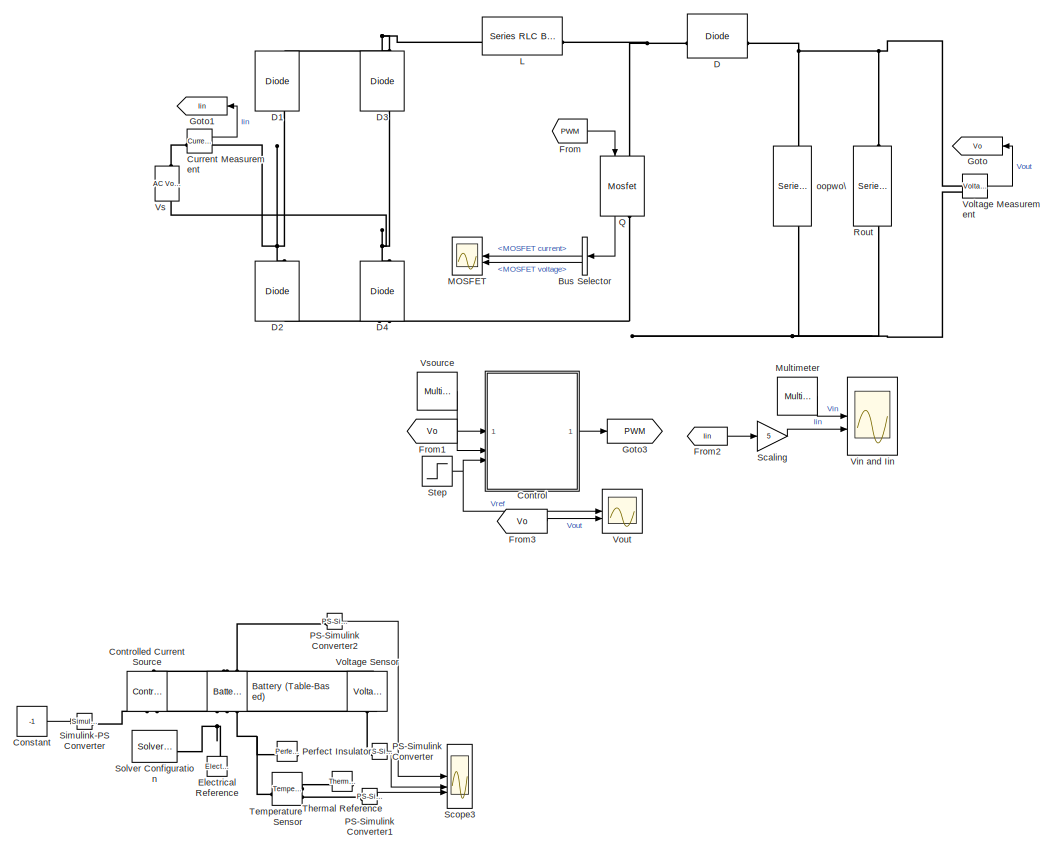
[diagram: root canvas - part 1/3, right side, full height]
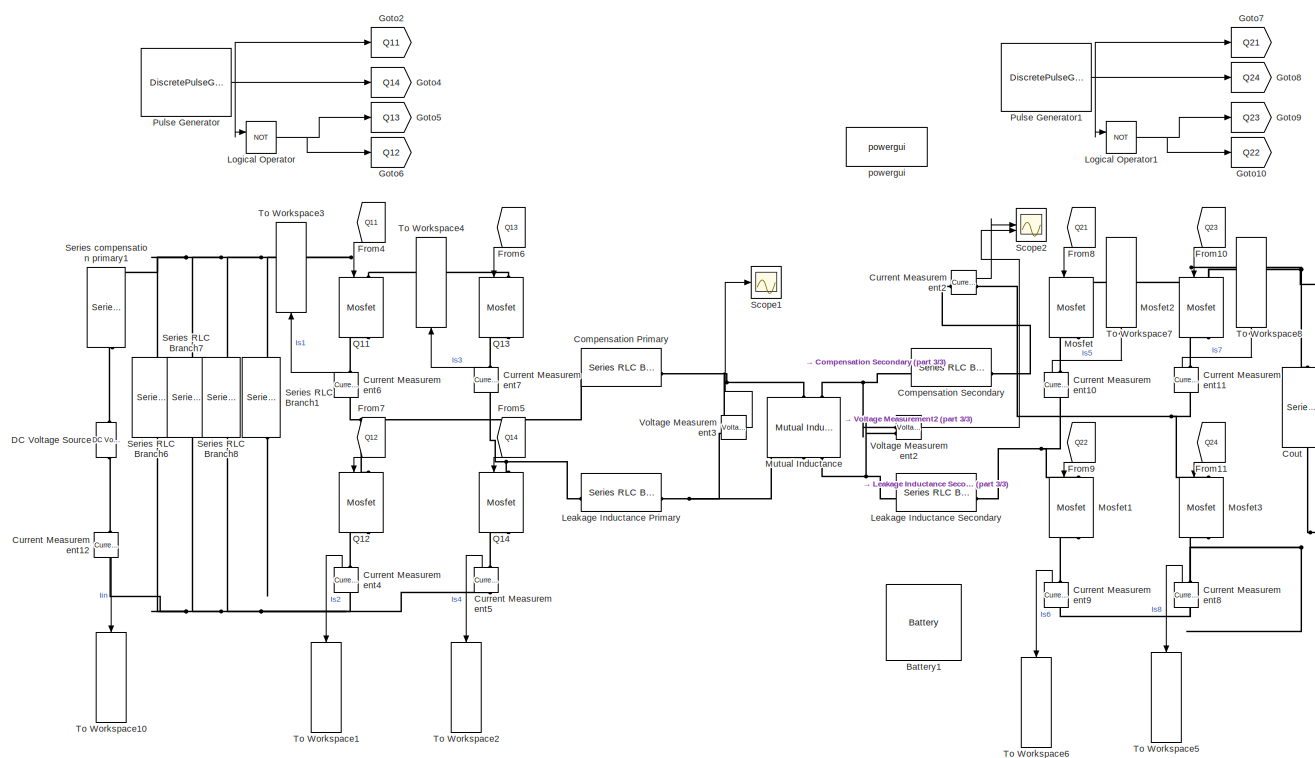
[diagram: root canvas - part 2/3, middle left region]
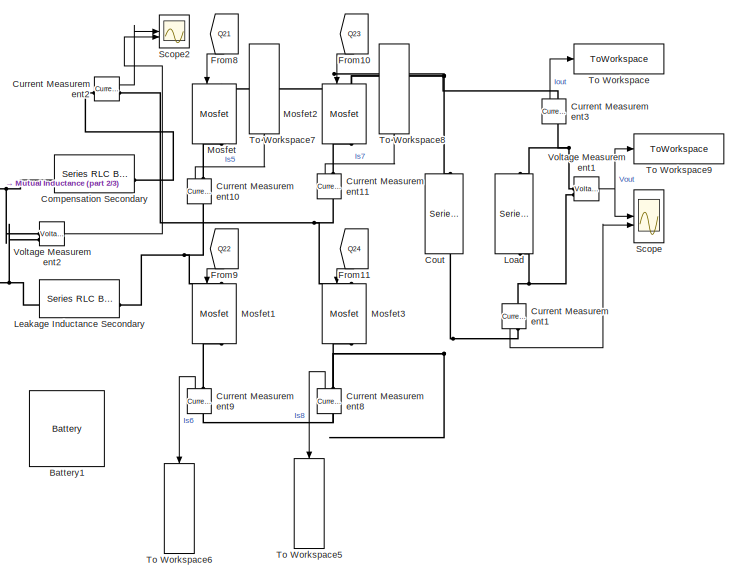
[diagram: root canvas - part 3/3, bottom center region]
MODEL slx_534a486eee41
KIND model
CONFIG AbsTol = auto
CONFIG EnableMultiTasking = off
CONFIG FixedStep = auto
CONFIG MaxStep = auto
CONFIG MinStep = auto
CONFIG RelTol = 1e-3
CONFIG SampleTimeConstraint = Unconstrained
CONFIG SolverName = VariableStepAuto
CONFIG StartTime = 0.0
CONFIG StopTime = 0.01
BLOCK [Reference] Battery (Table-Based)  REF=batteryecm_lib/Battery
(Table-Based)
  AttributesFormatString = Panasonic:NCA103450
  LibrarySourceBlock = batt_lib/Cells/Battery\n(Table-Based)
  NameLocation = right
  SourceBlock = batteryecm_lib/Battery\n(Table-Based)
  SourceType = Battery\n(Table-Based)
  Tag = {'toolbox/physmod/battery/shared_library/m/batteryecm_lib_parts';'Battery__Table_Based_/Panasonic/NCA103450.xml'}
BLOCK [Reference] Battery1  REF=spsBatteryLib/Battery
  LibrarySourceBlock = sps_lib/Sources/Battery
  SourceBlock = spsBatteryLib/Battery
  SourceType = Battery
BLOCK [BusSelector] Bus Selector
  Commented = on
  NameLocation = top
  OutputSignals = MOSFET current,MOSFET voltage
BLOCK [Reference] Compensation Primary  REF=spsSeriesRLCBranchLib/Series RLC Branch
  LibrarySourceBlock = sps_lib/Passives/Series RLC Branch
  SourceBlock = spsSeriesRLCBranchLib/Series RLC Branch
  SourceType = Series RLC Branch
BLOCK [Reference] Compensation Secondary  REF=spsSeriesRLCBranchLib/Series RLC Branch
  LibrarySourceBlock = sps_lib/Passives/Series RLC Branch
  SourceBlock = spsSeriesRLCBranchLib/Series RLC Branch
  SourceType = Series RLC Branch
BLOCK [Constant] Constant
  Value = -1
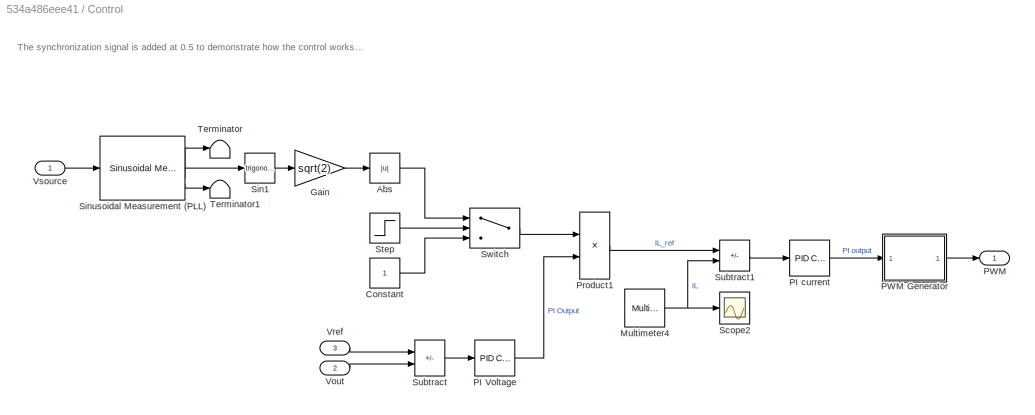
BLOCK [SubSystem] Control
  Commented = on
  NameLocation = top
BLOCK [Abs] Control/Abs
  SaturateOnIntegerOverflow = off
BLOCK [Constant] Control/Constant
BLOCK [Gain] Control/Gain
  Gain = sqrt(2)
BLOCK [Reference] Control/Multimeter4  REF=spsMultimeterLib/Multimeter
  SourceBlock = spsMultimeterLib/Multimeter
  SourceType = Multimeter
BLOCK [Reference] Control/PI Voltage  REF=slpidlib/PID Controller
  SourceBlock = slpidlib/PID Controller
  SourceType = PID 1dof
BLOCK [Reference] Control/PI current  REF=slpidlib/PID Controller
  SourceBlock = slpidlib/PID Controller
  SourceType = PID 1dof
BLOCK [Outport] Control/PWM
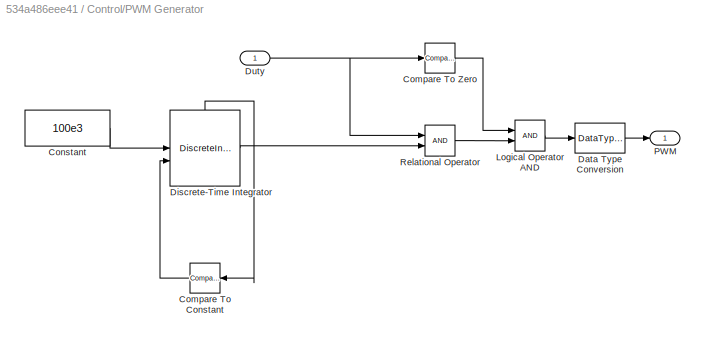
BLOCK [SubSystem] Control/PWM Generator
BLOCK [Reference] Control/PWM Generator/Compare To Constant  REF=simulink/Logic and Bit
Operations/Compare
To Constant
  NameLocation = top
  SourceBlock = simulink/Logic and Bit\nOperations/Compare\nTo Constant
  SourceType = Compare To Constant
BLOCK [Reference] Control/PWM Generator/Compare To Zero  REF=simulink/Logic and Bit
Operations/Compare
To Zero
  SourceBlock = simulink/Logic and Bit\nOperations/Compare\nTo Zero
  SourceType = Compare To Zero
BLOCK [Constant] Control/PWM Generator/Constant
  SampleTime = 5e-6
  Value = 100e3
BLOCK [DataTypeConversion] Control/PWM Generator/Data Type Conversion
  OutDataTypeStr = double
  RndMeth = Floor
  SaturateOnIntegerOverflow = off
BLOCK [DiscreteIntegrator] Control/PWM Generator/Discrete-Time Integrator
  ExternalReset = rising
  ICPrevOutput = DiscIntNeverNeededParam
  ICPrevScaledInput = DiscIntNeverNeededParam
  InitialConditionSetting = Auto
  SampleTime = -1
  ShowStatePort = on
BLOCK [Inport] Control/PWM Generator/Duty
BLOCK [Logic] Control/PWM Generator/Logical Operator AND
  AllPortsSameDT = off
  OutDataTypeStr = boolean
BLOCK [Outport] Control/PWM Generator/PWM
  NameLocation = top
  VectorParamsAs1DForOutWhenUnconnected = off
BLOCK [RelationalOperator] Control/PWM Generator/Relational Operator
  InputSameDT = off
  OutDataTypeStr = boolean
BLOCK [Product] Control/Product1
BLOCK [Scope] Control/Scope2
  ActiveDisplayYMaximum = 18.32762
  ActiveDisplayYMinimum = -4.88414
  DataLoggingVariableName = ScopeData2
  Floating = off
  GraphicalSettings = {"GraphicalSettings":{"LegacySettings":true,"Style":{"AxesScalingProperties":{"ScaleAxesLimitsAtStop":false},"Stats":{"Enabled":"true"},"Style":{"AxesColor":"[0 0 0]","ChannelNames":[""],"ColorOrder":"[1 1 0.0666666666666667;0.0745098039215686 0.623529411764706 1;1 0.411764705882353 0.16078431372549;0.392156862745098 0.831372549019608 0.0745098039215686;0.717647058823529 0.274509803921569 1;0.0588...<+475ch>
  MultipleDisplayCache = [{"MaxYLimMag":18.32762,"MaxYLimReal":18.32762,"MinYLimMag":0,"MinYLimReal":-4.88414,"PlotAsMagnitudePhase":false,"ShowGrid":true,"ShowLegend":false,"Title":"%<SignalLabel>","YLabel":""}]
  NumInputPorts = 1
  WasSavedAsWebScope = on
  WindowPosition = [1000 227 997 703]
BLOCK [Trigonometry] Control/Sin1
BLOCK [Reference] Control/Sinusoidal Measurement (PLL)  REF=eeSinusoidalMeasurementV2/Sinusoidal Measurement
(PLL)
  SourceBlock = eeSinusoidalMeasurementV2/Sinusoidal Measurement\n(PLL)
  SourceType = Sinusoidal Measurement (PLL)
BLOCK [Step] Control/Step
  SampleTime = 0
  Time = 0.5
BLOCK [Sum] Control/Subtract
  IconShape = rectangular
  Inputs = +-
BLOCK [Sum] Control/Subtract1
  IconShape = rectangular
  Inputs = +-
BLOCK [Switch] Control/Switch
  Criteria = u2 > Threshold
  InputSameDT = off
  SaturateOnIntegerOverflow = off
BLOCK [Terminator] Control/Terminator
BLOCK [Terminator] Control/Terminator1
BLOCK [Inport] Control/Vout
  Port = 2
BLOCK [Inport] Control/Vref
  NameLocation = top
  Port = 3
BLOCK [Inport] Control/Vsource
BLOCK [Reference] Controlled Current Source  REF=fl_lib/Electrical/Electrical Sources/Controlled Current
Source
  NameLocation = right
  SourceBlock = fl_lib/Electrical/Electrical Sources/Controlled Current\nSource
  SourceType = Controlled Current\nSource
BLOCK [Reference] Cout  REF=spsSeriesRLCBranchLib/Series RLC Branch
  LibrarySourceBlock = sps_lib/Passives/Series RLC Branch
  NameLocation = left
  SourceBlock = spsSeriesRLCBranchLib/Series RLC Branch
  SourceType = Series RLC Branch
BLOCK [Reference] Current Measurement  REF=spsCurrentMeasurementLib/Current Measurement
  Commented = on
  SourceBlock = spsCurrentMeasurementLib/Current Measurement
  SourceType = Current Measurement
  UserDataPersistent = on
BLOCK [Reference] Current Measurement1  REF=spsCurrentMeasurementLib/Current Measurement
  LibrarySourceBlock = sps_lib/Sensors and Measurements/Current Measurement
  NameLocation = left
  SourceBlock = spsCurrentMeasurementLib/Current Measurement
  SourceType = Current Measurement
  UserDataPersistent = on
BLOCK [Reference] Current Measurement10  REF=spsCurrentMeasurementLib/Current Measurement
  LibrarySourceBlock = sps_lib/Sensors and Measurements/Current Measurement
  NameLocation = right
  SourceBlock = spsCurrentMeasurementLib/Current Measurement
  SourceType = Current Measurement
  UserDataPersistent = on
BLOCK [Reference] Current Measurement11  REF=spsCurrentMeasurementLib/Current Measurement
  LibrarySourceBlock = sps_lib/Sensors and Measurements/Current Measurement
  NameLocation = right
  SourceBlock = spsCurrentMeasurementLib/Current Measurement
  SourceType = Current Measurement
  UserDataPersistent = on
BLOCK [Reference] Current Measurement12  REF=spsCurrentMeasurementLib/Current Measurement
  LibrarySourceBlock = sps_lib/Sensors and Measurements/Current Measurement
  NameLocation = left
  SourceBlock = spsCurrentMeasurementLib/Current Measurement
  SourceType = Current Measurement
  UserDataPersistent = on
BLOCK [Reference] Current Measurement2  REF=spsCurrentMeasurementLib/Current Measurement
  LibrarySourceBlock = sps_lib/Sensors and Measurements/Current Measurement
  SourceBlock = spsCurrentMeasurementLib/Current Measurement
  SourceType = Current Measurement
  UserDataPersistent = on
BLOCK [Reference] Current Measurement3  REF=spsCurrentMeasurementLib/Current Measurement
  LibrarySourceBlock = sps_lib/Sensors and Measurements/Current Measurement
  NameLocation = right
  SourceBlock = spsCurrentMeasurementLib/Current Measurement
  SourceType = Current Measurement
  UserDataPersistent = on
BLOCK [Reference] Current Measurement4  REF=spsCurrentMeasurementLib/Current Measurement
  LibrarySourceBlock = sps_lib/Sensors and Measurements/Current Measurement
  NameLocation = right
  SourceBlock = spsCurrentMeasurementLib/Current Measurement
  SourceType = Current Measurement
  UserDataPersistent = on
BLOCK [Reference] Current Measurement5  REF=spsCurrentMeasurementLib/Current Measurement
  LibrarySourceBlock = sps_lib/Sensors and Measurements/Current Measurement
  NameLocation = right
  SourceBlock = spsCurrentMeasurementLib/Current Measurement
  SourceType = Current Measurement
  UserDataPersistent = on
BLOCK [Reference] Current Measurement6  REF=spsCurrentMeasurementLib/Current Measurement
  LibrarySourceBlock = sps_lib/Sensors and Measurements/Current Measurement
  NameLocation = right
  SourceBlock = spsCurrentMeasurementLib/Current Measurement
  SourceType = Current Measurement
  UserDataPersistent = on
BLOCK [Reference] Current Measurement7  REF=spsCurrentMeasurementLib/Current Measurement
  LibrarySourceBlock = sps_lib/Sensors and Measurements/Current Measurement
  NameLocation = right
  SourceBlock = spsCurrentMeasurementLib/Current Measurement
  SourceType = Current Measurement
  UserDataPersistent = on
BLOCK [Reference] Current Measurement8  REF=spsCurrentMeasurementLib/Current Measurement
  LibrarySourceBlock = sps_lib/Sensors and Measurements/Current Measurement
  NameLocation = right
  SourceBlock = spsCurrentMeasurementLib/Current Measurement
  SourceType = Current Measurement
  UserDataPersistent = on
BLOCK [Reference] Current Measurement9  REF=spsCurrentMeasurementLib/Current Measurement
  LibrarySourceBlock = sps_lib/Sensors and Measurements/Current Measurement
  NameLocation = right
  SourceBlock = spsCurrentMeasurementLib/Current Measurement
  SourceType = Current Measurement
  UserDataPersistent = on
BLOCK [Reference] D  REF=spsDiodeLib/Diode
  Commented = on
  SourceBlock = spsDiodeLib/Diode
  SourceType = Diode
BLOCK [Reference] D1  REF=spsDiodeLib/Diode
  Commented = on
  NameLocation = right
  SourceBlock = spsDiodeLib/Diode
  SourceType = Diode
BLOCK [Reference] D2  REF=spsDiodeLib/Diode
  Commented = on
  NameLocation = right
  SourceBlock = spsDiodeLib/Diode
  SourceType = Diode
BLOCK [Reference] D3  REF=spsDiodeLib/Diode
  Commented = on
  NameLocation = right
  SourceBlock = spsDiodeLib/Diode
  SourceType = Diode
BLOCK [Reference] D4  REF=spsDiodeLib/Diode
  Commented = on
  NameLocation = right
  SourceBlock = spsDiodeLib/Diode
  SourceType = Diode
BLOCK [Reference] DC Voltage Source  REF=spsDCVoltageSourceLib/DC Voltage Source
  LibrarySourceBlock = sps_lib/Sources/DC Voltage Source
  SourceBlock = spsDCVoltageSourceLib/DC Voltage Source
  SourceType = DC Voltage Source
BLOCK [Reference] Electrical Reference  REF=fl_lib/Electrical/Electrical Elements/Electrical Reference
  LibrarySourceBlock = ee_lib/Connectors &\nReferences/Electrical Reference
  NameLocation = right
  SourceBlock = fl_lib/Electrical/Electrical Elements/Electrical Reference
  SourceType = Electrical Reference
BLOCK [From] From
  Commented = on
  GotoTag = PWM
BLOCK [From] From1
  Commented = on
  GotoTag = Vo
  TagVisibility = global
BLOCK [From] From10
  GotoTag = Q23
  NameLocation = left
BLOCK [From] From11
  GotoTag = Q24
  NameLocation = left
BLOCK [From] From2
  Commented = on
  GotoTag = Iin
  NameLocation = top
  TagVisibility = global
BLOCK [From] From3
  Commented = on
  GotoTag = Vo
  TagVisibility = global
BLOCK [From] From4
  GotoTag = Q11
  NameLocation = left
BLOCK [From] From5
  GotoTag = Q14
  NameLocation = left
BLOCK [From] From6
  GotoTag = Q13
  NameLocation = left
BLOCK [From] From7
  GotoTag = Q12
  NameLocation = left
BLOCK [From] From8
  GotoTag = Q21
  NameLocation = left
BLOCK [From] From9
  GotoTag = Q22
  NameLocation = left
BLOCK [Goto] Goto
  Commented = on
  GotoTag = Vo
  NameLocation = top
  TagVisibility = global
BLOCK [Goto] Goto1
  Commented = on
  GotoTag = Iin
  NameLocation = top
  TagVisibility = global
BLOCK [Goto] Goto10
  GotoTag = Q22
BLOCK [Goto] Goto2
  GotoTag = Q11
BLOCK [Goto] Goto3
  Commented = on
  GotoTag = PWM
BLOCK [Goto] Goto4
  GotoTag = Q14
BLOCK [Goto] Goto5
  GotoTag = Q13
BLOCK [Goto] Goto6
  GotoTag = Q12
BLOCK [Goto] Goto7
  GotoTag = Q21
BLOCK [Goto] Goto8
  GotoTag = Q24
BLOCK [Goto] Goto9
  GotoTag = Q23
BLOCK [Reference] L  REF=spsSeriesRLCBranchLib/Series RLC Branch
  Commented = on
  SourceBlock = spsSeriesRLCBranchLib/Series RLC Branch
  SourceType = Series RLC Branch
BLOCK [Reference] Leakage Inductance Primary  REF=spsSeriesRLCBranchLib/Series RLC Branch
  LibrarySourceBlock = sps_lib/Passives/Series RLC Branch
  SourceBlock = spsSeriesRLCBranchLib/Series RLC Branch
  SourceType = Series RLC Branch
BLOCK [Reference] Leakage Inductance Secondary  REF=spsSeriesRLCBranchLib/Series RLC Branch
  LibrarySourceBlock = sps_lib/Passives/Series RLC Branch
  SourceBlock = spsSeriesRLCBranchLib/Series RLC Branch
  SourceType = Series RLC Branch
BLOCK [Reference] Load  REF=spsSeriesRLCBranchLib/Series RLC Branch
  LibrarySourceBlock = sps_lib/Passives/Series RLC Branch
  NameLocation = left
  SourceBlock = spsSeriesRLCBranchLib/Series RLC Branch
  SourceType = Series RLC Branch
BLOCK [Logic] Logical Operator
  AllPortsSameDT = off
  Operator = NOT
  OutDataTypeStr = boolean
BLOCK [Logic] Logical Operator1
  AllPortsSameDT = off
  Operator = NOT
  OutDataTypeStr = boolean
BLOCK [Scope] MOSFET
  ActiveDisplayYMaximum = 222.50474
  ActiveDisplayYMinimum = -24.72275
  Commented = on
  DataLoggingVariableName = ScopeData1
  Floating = off
  GraphicalSettings = {"GraphicalSettings":{"LegacySettings":true,"Style":{"AxesScalingProperties":{"ScaleAxesLimitsAtStop":false},"Style":{"AxesColor":"[1 1 1]","BackgroundColor":"[1 1 1]","ChannelNames":["",""],"ColorOrder":"[0 0.447058823529412 0.741176470588235;0.850980392156863 0.325490196078431 0.0980392156862745;0.929411764705882 0.694117647058824 0.125490196078431;0.494117647058824 0.184313725490196 0.556862745...<+608ch>
  LayoutDimensionsString = [2 1]
  MultipleDisplayCache = [{"MaxYLimMag":222.50474,"MaxYLimReal":222.50474,"MinYLimMag":0,"MinYLimReal":-24.72275,"PlotAsMagnitudePhase":false,"ShowGrid":true,"ShowLegend":false,"Title":"%<SignalLabel>","YLabel":""},{"MaxYLimMag":586.87139,"MaxYLimReal":586.87139,"MinYLimMag":0,"MinYLimReal":-65.20793,"PlotAsMagnitudePhase":false,"ShowGrid":true,"ShowLegend":false,"Title":"%<SignalLabel>","YLabel":""}]
  NameLocation = top
  NumInputPorts = 2
  WasSavedAsWebScope = on
  WindowPosition = [661 394 970 676]
BLOCK [Reference] Mosfet  REF=spsMosfetLib/Mosfet
  LibrarySourceBlock = sps_lib/Power Electronics/Mosfet
  NameLocation = left
  SourceBlock = spsMosfetLib/Mosfet
  SourceType = Mosfet
BLOCK [Reference] Mosfet1  REF=spsMosfetLib/Mosfet
  LibrarySourceBlock = sps_lib/Power Electronics/Mosfet
  NameLocation = left
  SourceBlock = spsMosfetLib/Mosfet
  SourceType = Mosfet
BLOCK [Reference] Mosfet2  REF=spsMosfetLib/Mosfet
  LibrarySourceBlock = sps_lib/Power Electronics/Mosfet
  NameLocation = left
  SourceBlock = spsMosfetLib/Mosfet
  SourceType = Mosfet
BLOCK [Reference] Mosfet3  REF=spsMosfetLib/Mosfet
  LibrarySourceBlock = sps_lib/Power Electronics/Mosfet
  NameLocation = left
  SourceBlock = spsMosfetLib/Mosfet
  SourceType = Mosfet
BLOCK [Reference] Multimeter  REF=spsMultimeterLib/Multimeter
  Commented = on
  SourceBlock = spsMultimeterLib/Multimeter
  SourceType = Multimeter
BLOCK [Reference] Mutual Inductance  REF=spsMutualInductanceLib/Mutual Inductance
  AttributesFormatString = \n
  LibrarySourceBlock = sps_lib/Passives/Mutual Inductance
  NameLocation = left
  SourceBlock = spsMutualInductanceLib/Mutual Inductance
  SourceType = Mutual Inductance
BLOCK [Reference] PS-Simulink Converter  REF=nesl_utility/PS-Simulink
Converter
  SourceBlock = nesl_utility/PS-Simulink\nConverter
  SourceType = PS-Simulink\nConverter
BLOCK [Reference] PS-Simulink Converter1  REF=nesl_utility/PS-Simulink
Converter
  SourceBlock = nesl_utility/PS-Simulink\nConverter
  SourceType = PS-Simulink\nConverter
BLOCK [Reference] PS-Simulink Converter2  REF=nesl_utility/PS-Simulink
Converter
  SourceBlock = nesl_utility/PS-Simulink\nConverter
  SourceType = PS-Simulink\nConverter
BLOCK [Reference] Perfect Insulator  REF=fl_lib/Thermal/Thermal Elements/Perfect Insulator
  NameLocation = top
  SourceBlock = fl_lib/Thermal/Thermal Elements/Perfect Insulator
  SourceType = Perfect Insulator
BLOCK [DiscretePulseGenerator] Pulse Generator
  Period = 1176e-8
  PulseType = Time based
  PulseWidth = 50
BLOCK [DiscretePulseGenerator] Pulse Generator1
  Period = 1176e-8
  PhaseDelay = 882e-8
  PulseType = Time based
  PulseWidth = 50
BLOCK [Reference] Q  REF=spsMosfetLib/Mosfet
  Commented = on
  NameLocation = right
  SourceBlock = spsMosfetLib/Mosfet
  SourceType = Mosfet
BLOCK [Reference] Q11  REF=spsMosfetLib/Mosfet
  LibrarySourceBlock = sps_lib/Power Electronics/Mosfet
  NameLocation = left
  SourceBlock = spsMosfetLib/Mosfet
  SourceType = Mosfet
BLOCK [Reference] Q12  REF=spsMosfetLib/Mosfet
  LibrarySourceBlock = sps_lib/Power Electronics/Mosfet
  NameLocation = left
  SourceBlock = spsMosfetLib/Mosfet
  SourceType = Mosfet
BLOCK [Reference] Q13  REF=spsMosfetLib/Mosfet
  LibrarySourceBlock = sps_lib/Power Electronics/Mosfet
  NameLocation = left
  SourceBlock = spsMosfetLib/Mosfet
  SourceType = Mosfet
BLOCK [Reference] Q14  REF=spsMosfetLib/Mosfet
  LibrarySourceBlock = sps_lib/Power Electronics/Mosfet
  NameLocation = left
  SourceBlock = spsMosfetLib/Mosfet
  SourceType = Mosfet
BLOCK [Reference] Rout  REF=spsSeriesRLCBranchLib/Series RLC Branch
  Commented = on
  NameLocation = left
  SourceBlock = spsSeriesRLCBranchLib/Series RLC Branch
  SourceType = Series RLC Branch
BLOCK [Gain] Scaling
  Commented = on
  Gain = 5
BLOCK [Scope] Scope
  ActiveDisplayYMaximum = 362.37594
  ActiveDisplayYMinimum = -40.26399
  DataLoggingVariableName = ScopeData1
  Floating = off
  GraphicalSettings = {"GraphicalSettings":{"LegacySettings":true,"Style":{"AxesScalingProperties":{"ScaleAxesLimitsAtStop":false},"Bilevel":{"Enabled":"true","PercentReferenceLevels":"[10 50 90]","SettleSeek":0.02,"ShowAberrations":false,"ShowCycles":false,"ShowTransitions":true,"StateLevelTolerance":2,"StateLevels":"[0.0884436967769824 17.4234082650655]"},"Stats":{"Enabled":"true"},"Style":{"AxesColor":"[0 0 0]","Cha...<+883ch>
  MultipleDisplayCache = [{"MaxYLimMag":362.37594,"MaxYLimReal":362.37594,"MinYLimMag":0,"MinYLimReal":-40.26399,"PlotAsMagnitudePhase":false,"ShowGrid":true,"ShowLegend":false,"Title":"%<SignalLabel>","YLabel":""}]
  NumInputPorts = 2
  WasSavedAsWebScope = on
  WindowPosition = [1 1 1440 821]
BLOCK [Scope] Scope1
  ActiveDisplayYMaximum = 1971.47541
  ActiveDisplayYMinimum = -1945.01419
  DataLoggingVariableName = ScopeData2
  Floating = off
  GraphicalSettings = {"GraphicalSettings":{"LegacySettings":true,"Style":{"AxesScalingProperties":{"ScaleAxesLimitsAtStop":false},"Style":{"AxesColor":"[0 0 0]","ChannelNames":[""],"ColorOrder":"[1 0.909803921568627 0.392156862745098;0.149019607843137 0.549019607843137 0.866666666666667;0.96078431372549 0.466666666666667 0.16078431372549;0.286274509803922 0.858823529411765 0.250980392156863;0.752941176470588 0.3607843...<+540ch>
  MultipleDisplayCache = [{"MaxYLimMag":1971.47541,"MaxYLimReal":1971.47541,"MinYLimMag":0,"MinYLimReal":-1945.01419,"PlotAsMagnitudePhase":false,"ShowGrid":true,"ShowLegend":false,"Title":"%<SignalLabel>","YLabel":""}]
  NumInputPorts = 1
  WasSavedAsWebScope = on
  WindowPosition = [1 1 1440 821]
BLOCK [Scope] Scope2
  ActiveDisplayYMaximum = 12773.41315
  ActiveDisplayYMinimum = -13612.6568
  DataLoggingVariableName = ScopeData1
  Floating = off
  GraphicalSettings = {"GraphicalSettings":{"LegacySettings":true,"Style":{"AxesScalingProperties":{"ScaleAxesLimitsAtStop":false},"Bilevel":{"Enabled":"true","PercentReferenceLevels":"[10 50 90]","SettleSeek":0.02,"ShowAberrations":false,"ShowCycles":false,"ShowTransitions":true,"StateLevelTolerance":2,"StateLevels":"[-52.6636096876259 54.1301966572693]"},"Stats":{"Enabled":"true"},"Style":{"AxesColor":"[0 0 0]","Chan...<+857ch>
  MultipleDisplayCache = [{"MaxYLimMag":13612.6568,"MaxYLimReal":12773.41315,"MinYLimMag":0,"MinYLimReal":-13612.6568,"PlotAsMagnitudePhase":false,"ShowGrid":true,"ShowLegend":false,"Title":"%<SignalLabel>","YLabel":""}]
  NumInputPorts = 2
  WasSavedAsWebScope = on
  WindowPosition = [1 49 1920 955]
BLOCK [Scope] Scope3
  ActiveDisplayYMaximum = 1.0539
  ActiveDisplayYMinimum = 0.51492
  DataLoggingVariableName = ScopeData1
  Floating = off
  GraphicalSettings = {"GraphicalSettings":{"LegacySettings":true,"Style":{"Stats":{"Enabled":"true"},"Style":{"AxesColor":"[0 0 0]","ChannelNames":["","",""],"ColorOrder":"[1 0.909803921568627 0.392156862745098;0.149019607843137 0.549019607843137 0.866666666666667;0.96078431372549 0.466666666666667 0.16078431372549;0.286274509803922 0.858823529411765 0.250980392156863;0.752941176470588 0.36078431372549 0.9843137254901...<+581ch>
  LayoutDimensionsString = [3 1]
  MultipleDisplayCache = [{"MaxYLimMag":1.0539,"MaxYLimReal":1.0539,"MinYLimMag":0.51492,"MinYLimReal":0.51492,"PlotAsMagnitudePhase":false,"ShowGrid":true,"ShowLegend":false,"Title":"%<SignalLabel>","YLabel":""},{"MaxYLimMag":10,"MaxYLimReal":4.08675,"MinYLimMag":0,"MinYLimReal":3.58065,"PlotAsMagnitudePhase":false,"ShowGrid":true,"ShowLegend":false,"Title":"%<SignalLabel>","YLabel":""},{"MaxYLimMag":10,"MaxYLimReal":308...<+148ch>
  NumInputPorts = 3
  WasSavedAsWebScope = on
  WindowPosition = [1 49 1920 955]
BLOCK [Reference] Series RLC Branch1  REF=spsSeriesRLCBranchLib/Series RLC Branch
  LibrarySourceBlock = sps_lib/Passives/Series RLC Branch
  NameLocation = left
  SourceBlock = spsSeriesRLCBranchLib/Series RLC Branch
  SourceType = Series RLC Branch
BLOCK [Reference] Series RLC Branch6  REF=spsSeriesRLCBranchLib/Series RLC Branch
  LibrarySourceBlock = sps_lib/Passives/Series RLC Branch
  NameLocation = left
  SourceBlock = spsSeriesRLCBranchLib/Series RLC Branch
  SourceType = Series RLC Branch
BLOCK [Reference] Series RLC Branch7  REF=spsSeriesRLCBranchLib/Series RLC Branch
  LibrarySourceBlock = sps_lib/Passives/Series RLC Branch
  NameLocation = left
  SourceBlock = spsSeriesRLCBranchLib/Series RLC Branch
  SourceType = Series RLC Branch
BLOCK [Reference] Series RLC Branch8  REF=spsSeriesRLCBranchLib/Series RLC Branch
  LibrarySourceBlock = sps_lib/Passives/Series RLC Branch
  NameLocation = left
  SourceBlock = spsSeriesRLCBranchLib/Series RLC Branch
  SourceType = Series RLC Branch
BLOCK [Reference] Series compensation primary1  REF=spsSeriesRLCBranchLib/Series RLC Branch
  LibrarySourceBlock = sps_lib/Passives/Series RLC Branch
  NameLocation = left
  SourceBlock = spsSeriesRLCBranchLib/Series RLC Branch
  SourceType = Series RLC Branch
BLOCK [Reference] Simulink-PS Converter  REF=nesl_utility/Simulink-PS
Converter
  SourceBlock = nesl_utility/Simulink-PS\nConverter
  SourceType = Simulink-PS\nConverter
BLOCK [Reference] Solver Configuration  REF=nesl_utility/Solver
Configuration
  SourceBlock = nesl_utility/Solver\nConfiguration
  SourceType = Solver\nConfiguration
BLOCK [Step] Step
  After = 500
  Before = 400
  Commented = on
  SampleTime = 0
  Time = 2.5
BLOCK [Reference] Temperature Sensor  REF=fl_lib/Thermal/Thermal Sensors/Temperature Sensor
  SourceBlock = fl_lib/Thermal/Thermal Sensors/Temperature Sensor
  SourceType = Temperature Sensor
BLOCK [Reference] Thermal Reference  REF=fl_lib/Thermal/Thermal Elements/Thermal Reference
  NameLocation = top
  SourceBlock = fl_lib/Thermal/Thermal Elements/Thermal Reference
  SourceType = Thermal Reference
BLOCK [ToWorkspace] To Workspace
  FixptAsFi = on
  MaxDataPoints = inf
  SampleTime = -1
  SaveFormat = Timeseries
  VariableName = Iout
BLOCK [ToWorkspace] To Workspace1
  FixptAsFi = on
  MaxDataPoints = inf
  NameLocation = left
  SampleTime = -1
  SaveFormat = Timeseries
  VariableName = Is2
BLOCK [ToWorkspace] To Workspace10
  FixptAsFi = on
  MaxDataPoints = inf
  NameLocation = left
  SampleTime = -1
  SaveFormat = Timeseries
  VariableName = Iin
BLOCK [ToWorkspace] To Workspace2
  FixptAsFi = on
  MaxDataPoints = inf
  NameLocation = left
  SampleTime = -1
  SaveFormat = Timeseries
  VariableName = Is4
BLOCK [ToWorkspace] To Workspace3
  FixptAsFi = on
  MaxDataPoints = inf
  NameLocation = right
  SampleTime = -1
  SaveFormat = Timeseries
  VariableName = Is1
BLOCK [ToWorkspace] To Workspace4
  FixptAsFi = on
  MaxDataPoints = inf
  NameLocation = right
  SampleTime = -1
  SaveFormat = Timeseries
  VariableName = Is3
BLOCK [ToWorkspace] To Workspace5
  FixptAsFi = on
  MaxDataPoints = inf
  NameLocation = left
  SampleTime = -1
  SaveFormat = Timeseries
  VariableName = Is8
BLOCK [ToWorkspace] To Workspace6
  FixptAsFi = on
  MaxDataPoints = inf
  NameLocation = left
  SampleTime = -1
  SaveFormat = Timeseries
  VariableName = Is6
BLOCK [ToWorkspace] To Workspace7
  FixptAsFi = on
  MaxDataPoints = inf
  NameLocation = right
  SampleTime = -1
  SaveFormat = Timeseries
  VariableName = Is5
BLOCK [ToWorkspace] To Workspace8
  FixptAsFi = on
  MaxDataPoints = inf
  NameLocation = right
  SampleTime = -1
  SaveFormat = Timeseries
  VariableName = Is7
BLOCK [ToWorkspace] To Workspace9
  FixptAsFi = on
  MaxDataPoints = inf
  SampleTime = -1
  SaveFormat = Timeseries
  VariableName = Vout
BLOCK [Scope] Vin and Iin
  ActiveDisplayYMaximum = 1132.14872
  ActiveDisplayYMinimum = -314.35611
  Commented = on
  DataLogging = on
  DataLoggingSaveFormat = Structure With Time
  DataLoggingVariableName = ScopeData2
  Floating = off
  GraphicalSettings = {"GraphicalSettings":{"LegacySettings":true,"Style":{"AxesScalingProperties":{"ScaleAxesLimitsAtStop":false},"Style":{"AxesColor":"[1 1 1]","BackgroundColor":"[1 1 1]","ChannelNames":[""],"ColorOrder":"[0 0.447058823529412 0.741176470588235;0.850980392156863 0.325490196078431 0.0980392156862745;0.929411764705882 0.694117647058824 0.125490196078431;0.494117647058824 0.184313725490196 0.556862745098...<+566ch>
  MultipleDisplayCache = [{"MaxYLimMag":1132.14872,"MaxYLimReal":1132.14872,"MinYLimMag":0,"MinYLimReal":-314.35611,"PlotAsMagnitudePhase":false,"ShowGrid":true,"ShowLegend":true,"Title":"%<SignalLabel>","YLabel":""}]
  NumInputPorts = 2
  OpenAtSimulationStart = on
  ShowLegend = on
  WasSavedAsWebScope = on
  WindowPosition = [471 207 1372 951]
BLOCK [Reference] Voltage Measurement  REF=spsVoltageMeasurementLib/Voltage Measurement
  Commented = on
  SourceBlock = spsVoltageMeasurementLib/Voltage Measurement
  SourceType = Voltage Measurement
  UserDataPersistent = on
BLOCK [Reference] Voltage Measurement1  REF=spsVoltageMeasurementLib/Voltage Measurement
  LibrarySourceBlock = sps_lib/Sensors and Measurements/Voltage Measurement
  SourceBlock = spsVoltageMeasurementLib/Voltage Measurement
  SourceType = Voltage Measurement
  UserDataPersistent = on
BLOCK [Reference] Voltage Measurement2  REF=spsVoltageMeasurementLib/Voltage Measurement
  LibrarySourceBlock = sps_lib/Sensors and Measurements/Voltage Measurement
  SourceBlock = spsVoltageMeasurementLib/Voltage Measurement
  SourceType = Voltage Measurement
  UserDataPersistent = on
BLOCK [Reference] Voltage Measurement3  REF=spsVoltageMeasurementLib/Voltage Measurement
  LibrarySourceBlock = sps_lib/Sensors and Measurements/Voltage Measurement
  SourceBlock = spsVoltageMeasurementLib/Voltage Measurement
  SourceType = Voltage Measurement
  UserDataPersistent = on
BLOCK [Reference] Voltage Sensor  REF=fl_lib/Electrical/Electrical Sensors/Voltage Sensor
  NameLocation = right
  SourceBlock = fl_lib/Electrical/Electrical Sensors/Voltage Sensor
  SourceType = Voltage Sensor
BLOCK [Scope] Vout
  ActiveDisplayYMaximum = 585.9592
  ActiveDisplayYMinimum = -65.10658
  Commented = on
  DataLoggingVariableName = ScopeData3
  Floating = off
  GraphicalSettings = {"GraphicalSettings":{"LegacySettings":true,"Style":{"AxesScalingProperties":{"ScaleAxesLimitsAtStop":false},"Stats":{"Enabled":"true"},"Style":{"AxesColor":"[1 1 1]","BackgroundColor":"[1 1 1]","ChannelNames":[""],"ColorOrder":"[0 0.447058823529412 0.741176470588235;0.850980392156863 0.325490196078431 0.0980392156862745;0.929411764705882 0.694117647058824 0.125490196078431;0.494117647058824 0.184...<+702ch>
  MultipleDisplayCache = [{"MaxYLimMag":585.9592,"MaxYLimReal":585.9592,"MinYLimMag":0,"MinYLimReal":-65.10658,"PlotAsMagnitudePhase":false,"ShowGrid":true,"ShowLegend":true,"Title":"%<SignalLabel>","YLabel":""}]
  NumInputPorts = 2
  OpenAtSimulationStart = on
  ShowLegend = on
  WasSavedAsWebScope = on
  WindowPosition = [702 157 1263 850]
BLOCK [Reference] Vs  REF=spsACVoltageSourceLib/AC Voltage Source
  Commented = on
  NameLocation = left
  SourceBlock = spsACVoltageSourceLib/AC Voltage Source
  SourceType = AC Voltage Source
BLOCK [Reference] Vsource  REF=spsMultimeterLib/Multimeter
  Commented = on
  NameLocation = top
  SourceBlock = spsMultimeterLib/Multimeter
  SourceType = Multimeter
BLOCK [Reference] oopwo\  REF=spsSeriesRLCBranchLib/Series RLC Branch
  Commented = on
  NameLocation = left
  SourceBlock = spsSeriesRLCBranchLib/Series RLC Branch
  SourceType = Series RLC Branch
BLOCK [Reference] powergui  REF=spspowerguiLib/powergui
  LibrarySourceBlock = sps_lib/powergui
  Priority = 1
  SourceBlock = spspowerguiLib/powergui
  SourceType = PSB option menu block
ANNOTATION Control: The synchronization signal is added at 0.5 to demonstrate how the control works with and without it.
LINE Bus Selector:1 -> MOSFET:1
LINE Bus Selector:2 -> MOSFET:2
LINE Constant:1 -> Simulink-PS Converter:1
LINE Control/Abs:1 -> Control/Switch:1
LINE Control/Constant:1 -> Control/Switch:3
LINE Control/Gain:1 -> Control/Abs:1
NET Control/Multimeter4:1 -> Control/Scope2:1, Control/Subtract1:2
LINE Control/PI Voltage:1 -> Control/Product1:2
LINE Control/PI current:1 -> Control/PWM Generator:1
LINE Control/PWM Generator/Compare To Constant:1 -> Control/PWM Generator/Discrete-Time Integrator:2
LINE Control/PWM Generator/Compare To Zero:1 -> Control/PWM Generator/Logical Operator AND:1
LINE Control/PWM Generator/Constant:1 -> Control/PWM Generator/Discrete-Time Integrator:1
LINE Control/PWM Generator/Data Type Conversion:1 -> Control/PWM Generator/PWM:1
LINE Control/PWM Generator/Discrete-Time Integrator:1 -> Control/PWM Generator/Relational Operator:2
LINE Control/PWM Generator/Discrete-Time Integrator:state -> Control/PWM Generator/Compare To Constant:1
NET Control/PWM Generator/Duty:1 -> Control/PWM Generator/Compare To Zero:1, Control/PWM Generator/Relational Operator:1
LINE Control/PWM Generator/Logical Operator AND:1 -> Control/PWM Generator/Data Type Conversion:1
LINE Control/PWM Generator/Relational Operator:1 -> Control/PWM Generator/Logical Operator AND:2
LINE Control/PWM Generator:1 -> Control/PWM:1
LINE Control/Product1:1 -> Control/Subtract1:1
LINE Control/Sin1:1 -> Control/Gain:1
LINE Control/Sinusoidal Measurement (PLL):1 -> Control/Terminator:1
LINE Control/Sinusoidal Measurement (PLL):2 -> Control/Sin1:1
LINE Control/Sinusoidal Measurement (PLL):3 -> Control/Terminator1:1
LINE Control/Step:1 -> Control/Switch:2
LINE Control/Subtract1:1 -> Control/PI current:1
LINE Control/Subtract:1 -> Control/PI Voltage:1
LINE Control/Switch:1 -> Control/Product1:1
LINE Control/Vout:1 -> Control/Subtract:2
LINE Control/Vref:1 -> Control/Subtract:1
LINE Control/Vsource:1 -> Control/Sinusoidal Measurement (PLL):1
LINE Control:1 -> Goto3:1
LINE Current Measurement10:1 -> To Workspace7:1
LINE Current Measurement11:1 -> To Workspace8:1
LINE Current Measurement12:1 -> To Workspace10:1
LINE Current Measurement1:1 -> Scope:2
LINE Current Measurement2:1 -> Scope2:1
LINE Current Measurement3:1 -> To Workspace:1
LINE Current Measurement4:1 -> To Workspace1:1
LINE Current Measurement5:1 -> To Workspace2:1
LINE Current Measurement6:1 -> To Workspace3:1
LINE Current Measurement7:1 -> To Workspace4:1
LINE Current Measurement8:1 -> To Workspace5:1
LINE Current Measurement9:1 -> To Workspace6:1
LINE Current Measurement:1 -> Goto1:1
LINE From10:1 -> Mosfet2:1
LINE From11:1 -> Mosfet3:1
LINE From1:1 -> Control:2
LINE From2:1 -> Scaling:1
LINE From3:1 -> Vout:2
LINE From4:1 -> Q11:1
LINE From5:1 -> Q14:1
LINE From6:1 -> Q13:1
LINE From7:1 -> Q12:1
LINE From8:1 -> Mosfet:1
LINE From9:1 -> Mosfet1:1
LINE From:1 -> Q:1
NET Logical Operator1:1 -> Goto10:1, Goto9:1
NET Logical Operator:1 -> Goto5:1, Goto6:1
LINE Multimeter:1 -> Vin and Iin:1
LINE PS-Simulink Converter1:1 -> Scope3:3
LINE PS-Simulink Converter2:1 -> Scope3:1
LINE PS-Simulink Converter:1 -> Scope3:2
NET Pulse Generator1:1 -> Goto7:1, Goto8:1, Logical Operator1:1
NET Pulse Generator:1 -> Goto2:1, Goto4:1, Logical Operator:1
LINE Q:1 -> Bus Selector:1
LINE Scaling:1 -> Vin and Iin:2
NET Step:1 -> Control:3, Vout:1
NET Voltage Measurement1:1 -> Scope:1, To Workspace9:1
LINE Voltage Measurement2:1 -> Scope2:2
LINE Voltage Measurement3:1 -> Scope1:1
LINE Voltage Measurement:1 -> Goto:1
LINE Vsource:1 -> Control:1
PNET net1: Battery (Table-Based):LConn1 -- Controlled Current Source:LConn1 -- Voltage Sensor:LConn1
PLINE Battery (Table-Based):LConn2 -- PS-Simulink Converter2:LConn1
PNET net2: Battery (Table-Based):RConn1 -- Controlled Current Source:RConn2 -- Electrical Reference:LConn1 -- Solver Configuration:RConn1 -- Voltage Sensor:RConn2
PNET net3: Battery (Table-Based):RConn2 -- Perfect Insulator:LConn1 -- Temperature Sensor:LConn1
PNET net4: Compensation Primary:LConn1 -- Current Measurement6:LConn1 -- Q12:LConn1
PNET net5: Compensation Primary:RConn1 -- Mutual Inductance:LConn1 -- Voltage Measurement3:LConn1
PNET net6: Compensation Secondary:LConn1 -- Mutual Inductance:LConn2 -- Voltage Measurement2:LConn1
PLINE Compensation Secondary:RConn1 -- Current Measurement2:LConn1
PLINE Controlled Current Source:RConn1 -- Simulink-PS Converter:RConn1
PNET net7: Cout:LConn1 -- Current Measurement3:RConn1 -- Mosfet2:LConn1 -- Mosfet:LConn1
PNET net8: Cout:RConn1 -- Current Measurement1:RConn1 -- Current Measurement8:LConn1 -- Current Measurement9:LConn1
PNET net9: Current Measurement10:LConn1 -- Leakage Inductance Secondary:RConn1 -- Mosfet1:LConn1
PLINE Current Measurement10:RConn1 -- Mosfet:RConn1
PNET net10: Current Measurement11:LConn1 -- Current Measurement2:RConn1 -- Mosfet3:LConn1
PLINE Current Measurement11:RConn1 -- Mosfet2:RConn1
PLINE Current Measurement12:LConn1 -- DC Voltage Source:LConn1
PNET net11: Current Measurement12:RConn1 -- Current Measurement4:LConn1 -- Current Measurement5:LConn1 -- Series RLC Branch1:RConn1 -- Series RLC Branch6:RConn1 -- Series RLC Branch7:RConn1 -- Series RLC Branch8:RConn1
PNET net12: Current Measurement1:LConn1 -- Load:RConn1 -- Voltage Measurement1:LConn2
PNET net13: Current Measurement3:LConn1 -- Load:LConn1 -- Voltage Measurement1:LConn1
PLINE Current Measurement4:RConn1 -- Q12:RConn1
PLINE Current Measurement5:RConn1 -- Q14:RConn1
PLINE Current Measurement6:RConn1 -- Q11:RConn1
PNET net14: Current Measurement7:LConn1 -- Leakage Inductance Primary:LConn1 -- Q14:LConn1
PLINE Current Measurement7:RConn1 -- Q13:RConn1
PLINE Current Measurement8:RConn1 -- Mosfet3:RConn1
PLINE Current Measurement9:RConn1 -- Mosfet1:RConn1
PLINE Current Measurement:LConn1 -- Vs:RConn1
PNET net15: Current Measurement:RConn1 -- D1:LConn1 -- D2:RConn1
PNET net16: D1:RConn1 -- D3:RConn1 -- L:LConn1
PNET net17: D2:LConn1 -- D4:LConn1 -- Q:RConn1 -- Rout:RConn1 -- Voltage Measurement:LConn2 -- oopwo\:RConn1
PNET net18: D3:LConn1 -- D4:RConn1 -- Vs:LConn1
PNET net19: D:LConn1 -- L:RConn1 -- Q:LConn1
PNET net20: D:RConn1 -- Rout:LConn1 -- Voltage Measurement:LConn1 -- oopwo\:LConn1
PLINE DC Voltage Source:RConn1 -- Series compensation primary1:RConn1
PNET net21: Leakage Inductance Primary:RConn1 -- Mutual Inductance:RConn1 -- Voltage Measurement3:LConn2
PNET net22: Leakage Inductance Secondary:LConn1 -- Mutual Inductance:RConn2 -- Voltage Measurement2:LConn2
PLINE PS-Simulink Converter1:LConn1 -- Temperature Sensor:RConn2
PLINE PS-Simulink Converter:LConn1 -- Voltage Sensor:RConn1
PNET net23: Q11:LConn1 -- Q13:LConn1 -- Series RLC Branch1:LConn1 -- Series RLC Branch6:LConn1 -- Series RLC Branch7:LConn1 -- Series RLC Branch8:LConn1 -- Series compensation primary1:LConn1
PLINE Temperature Sensor:RConn1 -- Thermal Reference:LConn1
note: NET lines group one-source signal fan-out (src -> all destinations, sorted); 1:1 wires keep LINE; PNET lines group multi-terminal physical nets as a canonical sorted terminal list (undirected conserving connections); 2-terminal nets keep the pairwise PLINE form
